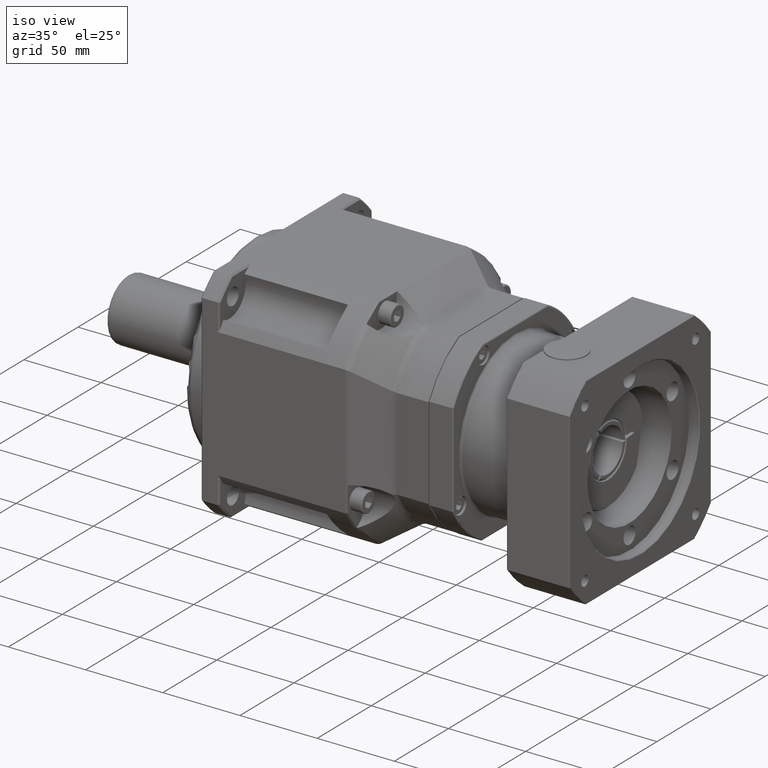
[diagram: clean part render]
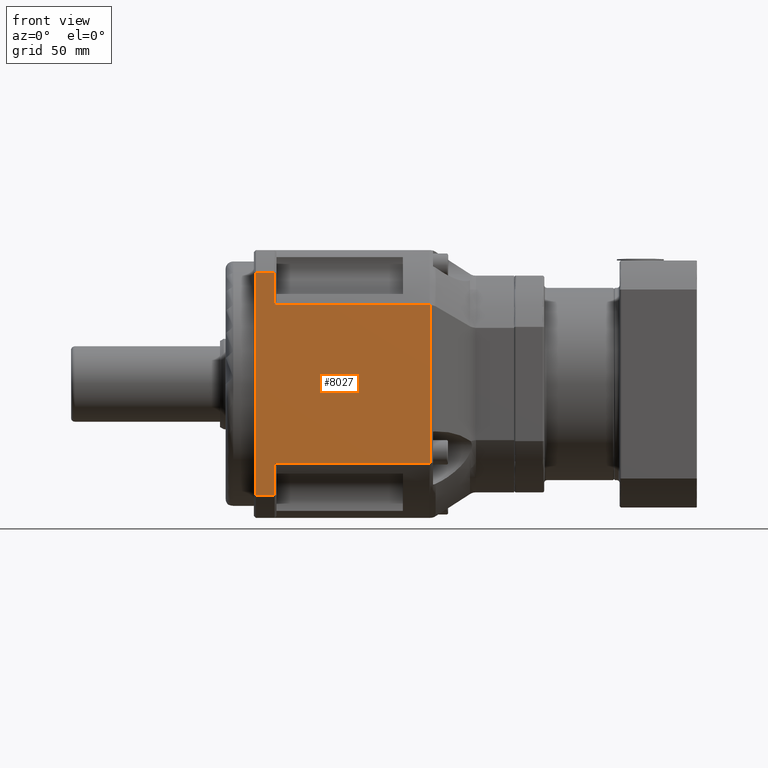
[diagram: tour spotlight — one face highlighted and labeled with its STEP entity id]
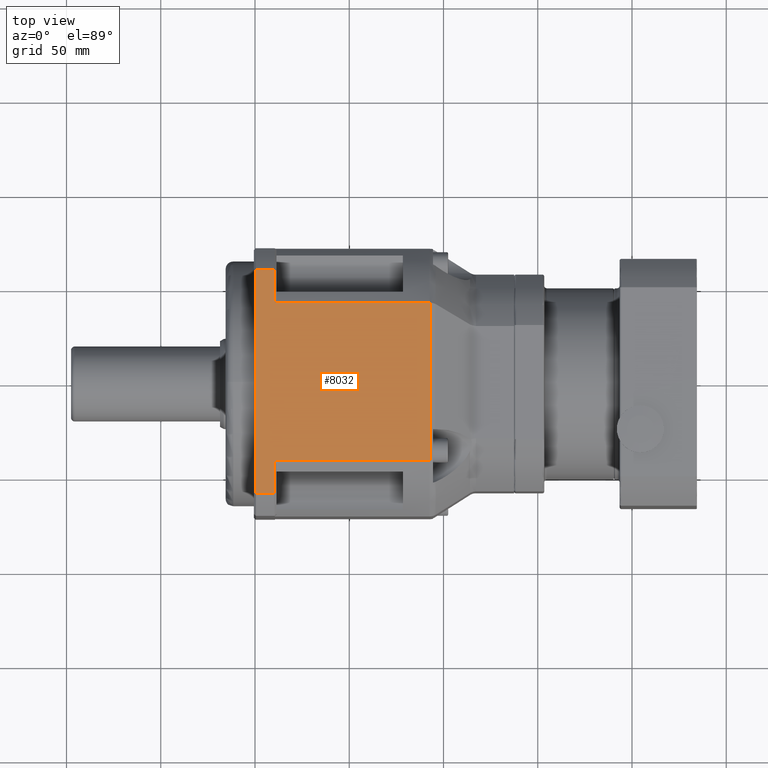
[diagram: tour spotlight — one face highlighted and labeled with its STEP entity id]
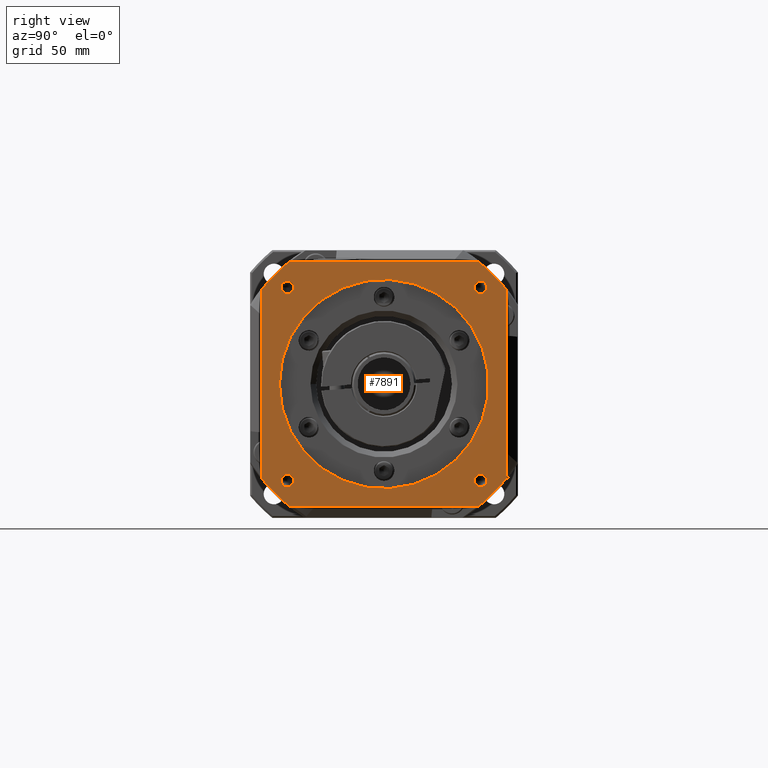
[diagram: tour spotlight — one face highlighted and labeled with its STEP entity id]
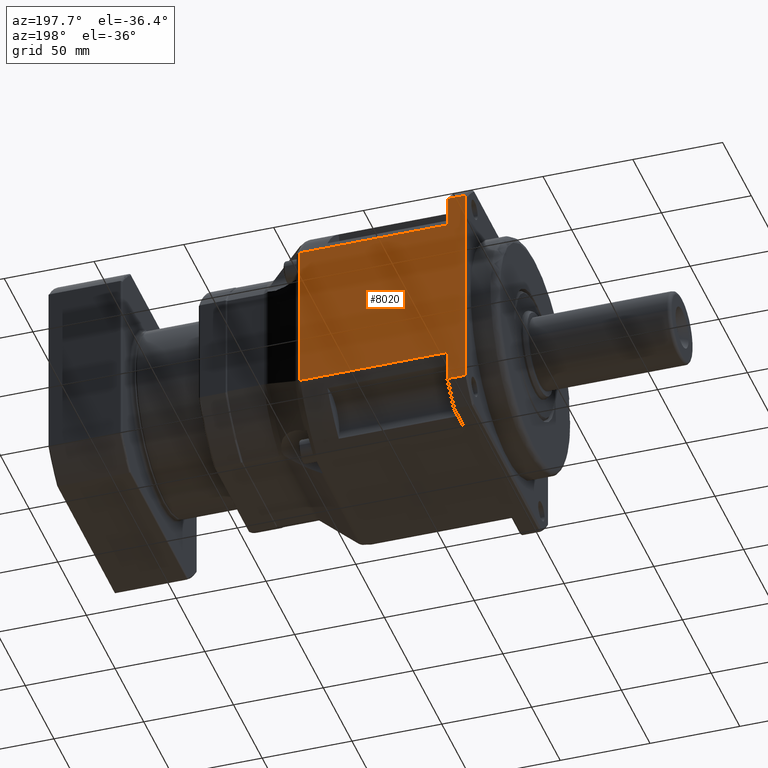
[diagram: tour spotlight — one face highlighted and labeled with its STEP entity id]
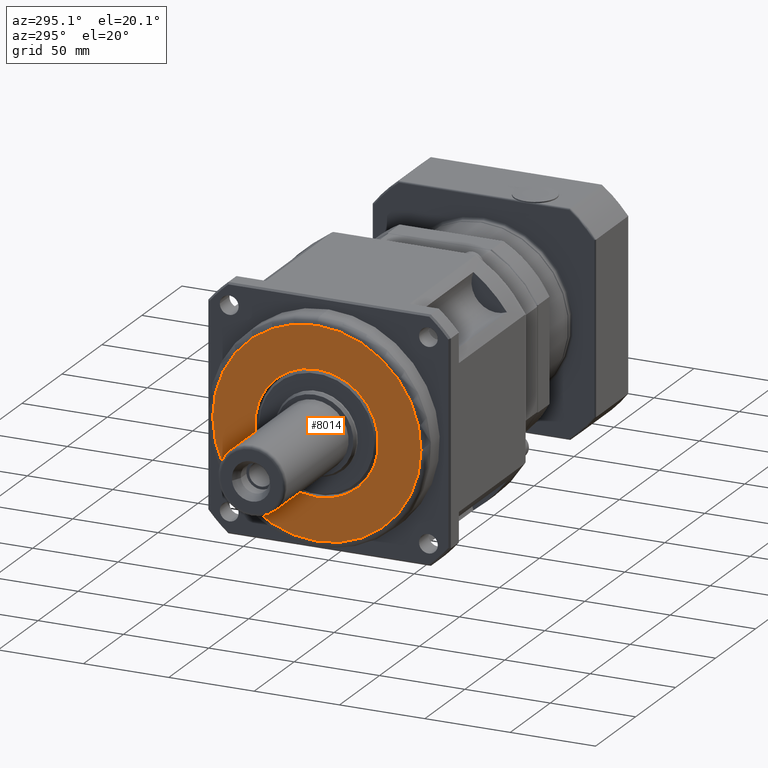
[diagram: tour spotlight — one face highlighted and labeled with its STEP entity id]
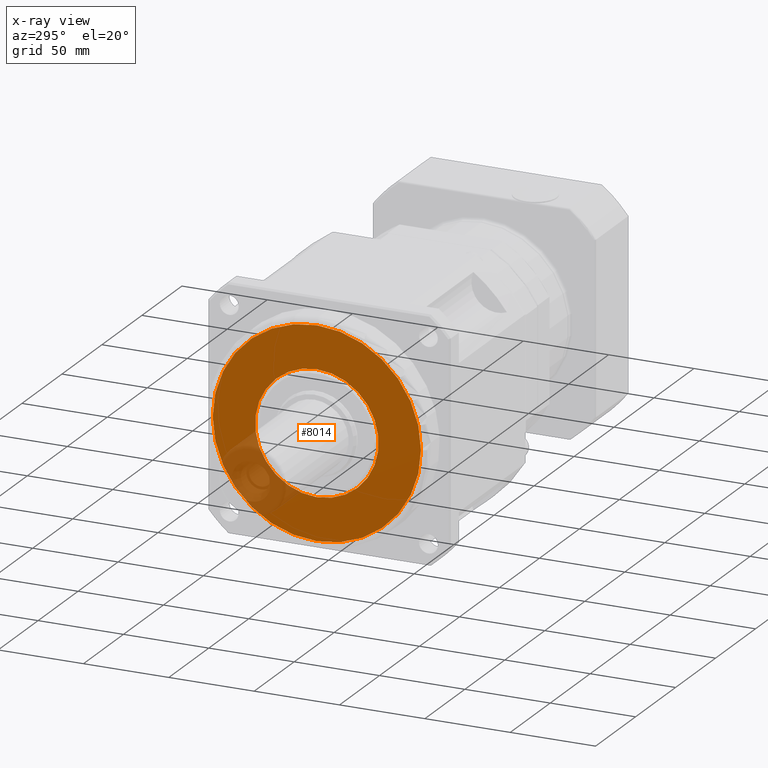
[diagram: x-ray of the same camera — body ghosted, this tour face saturated]
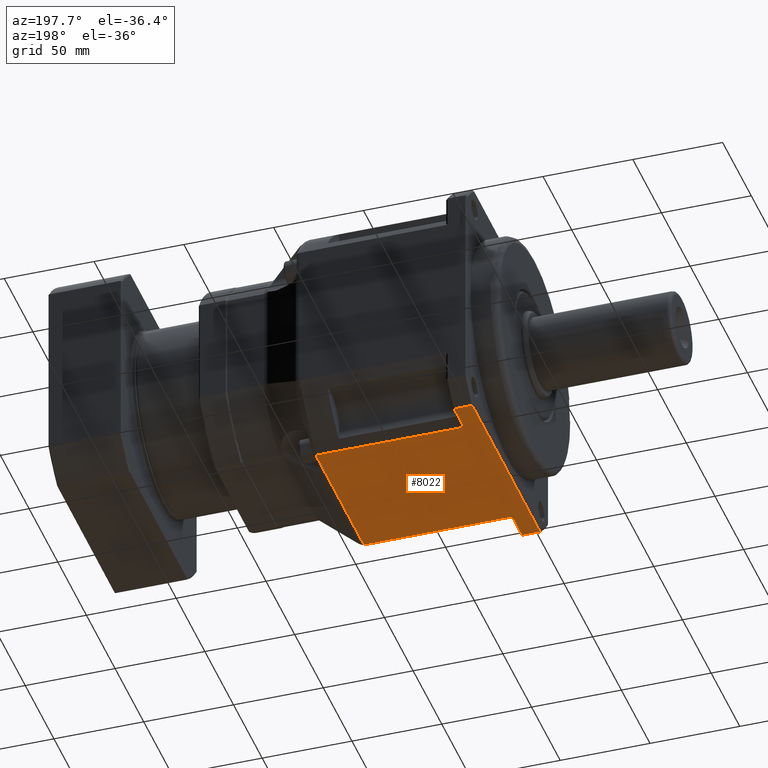
[diagram: tour spotlight — one face highlighted and labeled with its STEP entity id]
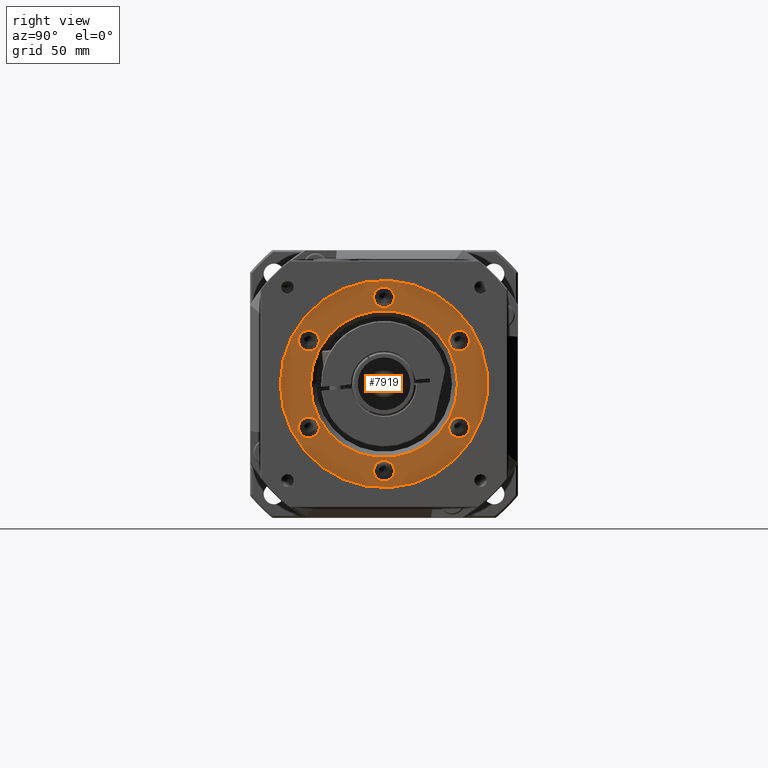
[diagram: tour spotlight — one face highlighted and labeled with its STEP entity id]
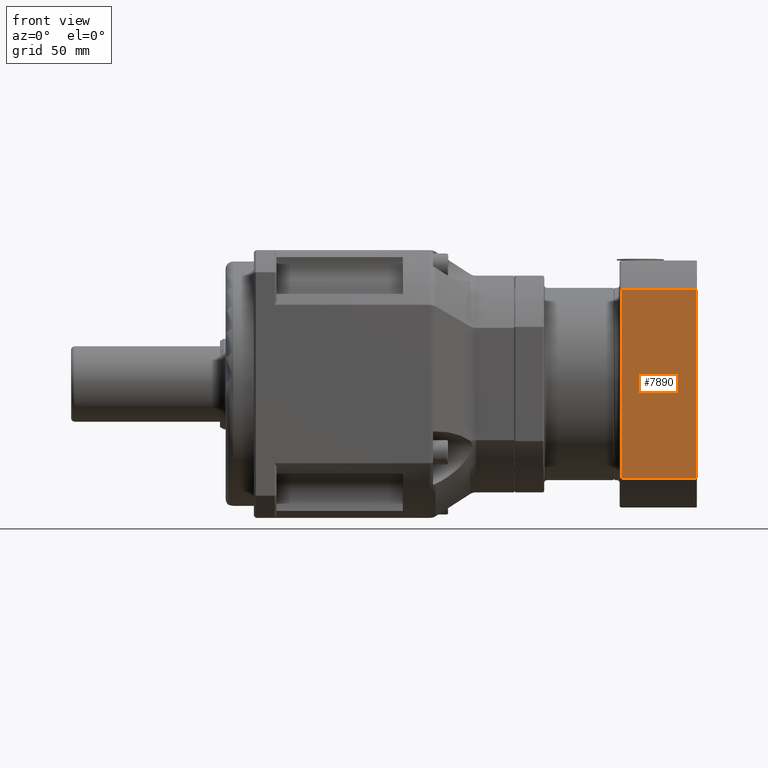
[diagram: tour spotlight — one face highlighted and labeled with its STEP entity id]
A machine part: a face-by-face anatomy tour. The part has 546 B-rep faces; the first image is the clean iso view, then the 8 largest visible faces are spotlighted one at a time (largest first), each with its STEP entity span.

Face 1 — front view, entity #8027. In plain terms, the highlighted planar face has unit normal (-0, -1, -0).
Definition (entity closure, byte-faithful):
#116=B_SPLINE_CURVE_WITH_KNOTS('',3,(#13410,#13411,#13412,#13413),
 .UNSPECIFIED.,.F.,.F.,(4,4),(0.,0.037302708061321),.UNSPECIFIED.);
#125=B_SPLINE_CURVE_WITH_KNOTS('',3,(#13486,#13487,#13488,#13489),
 .UNSPECIFIED.,.F.,.F.,(4,4),(0.231609461241632,0.268896153350201),
 .UNSPECIFIED.);
#428=LINE('',#13352,#815);
#462=LINE('',#13928,#849);
#463=LINE('',#13938,#850);
#464=LINE('',#13941,#851);
#465=LINE('',#13943,#852);
#466=LINE('',#13945,#853);
#467=LINE('',#13947,#854);
#468=LINE('',#13948,#855);
#815=VECTOR('',#10283,83.9761787812403);
#849=VECTOR('',#10435,17.2746654490736);
#850=VECTOR('',#10444,10.);
#851=VECTOR('',#10449,82.1624407477355);
#852=VECTOR('',#10450,82.1624407477355);
#853=VECTOR('',#10451,17.2746654490736);
#854=VECTOR('',#10452,10.);
#855=VECTOR('',#10453,118.57908753233);
#1334=PLANE('',#8815);
#2030=FACE_OUTER_BOUND('',#2735,.T.);
#2735=EDGE_LOOP('',(#6286,#6287,#6288,#6289,#6290,#6291,#6292,#6293,#6294,
#6295));
#3796=VERTEX_POINT('',#13350);
#3797=VERTEX_POINT('',#13351);
#3804=VERTEX_POINT('',#13404);
#3811=VERTEX_POINT('',#13485);
#3871=VERTEX_POINT('',#13925);
#3872=VERTEX_POINT('',#13927);
#3873=VERTEX_POINT('',#13937);
#3874=VERTEX_POINT('',#13942);
#3875=VERTEX_POINT('',#13944);
#3876=VERTEX_POINT('',#13946);
#4641=EDGE_CURVE('',#3796,#3797,#428,.T.);
#4649=EDGE_CURVE('',#3804,#3796,#116,.T.);
#4660=EDGE_CURVE('',#3797,#3811,#125,.T.);
#4748=EDGE_CURVE('',#3871,#3872,#462,.T.);
#4752=EDGE_CURVE('',#3873,#3872,#463,.T.);
#4754=EDGE_CURVE('',#3871,#3811,#464,.T.);
#4755=EDGE_CURVE('',#3804,#3874,#465,.T.);
#4756=EDGE_CURVE('',#3875,#3874,#466,.T.);
#4757=EDGE_CURVE('',#3875,#3876,#467,.T.);
#4758=EDGE_CURVE('',#3873,#3876,#468,.T.);
#6286=ORIENTED_EDGE('',*,*,#4748,.F.);
#6287=ORIENTED_EDGE('',*,*,#4754,.T.);
#6288=ORIENTED_EDGE('',*,*,#4660,.F.);
#6289=ORIENTED_EDGE('',*,*,#4641,.F.);
#6290=ORIENTED_EDGE('',*,*,#4649,.F.);
#6291=ORIENTED_EDGE('',*,*,#4755,.T.);
#6292=ORIENTED_EDGE('',*,*,#4756,.F.);
#6293=ORIENTED_EDGE('',*,*,#4757,.T.);
#6294=ORIENTED_EDGE('',*,*,#4758,.F.);
#6295=ORIENTED_EDGE('',*,*,#4752,.T.);
#8027=ADVANCED_FACE('',(#2030),#1334,.T.);
#8815=AXIS2_PLACEMENT_3D('',#13940,#10447,#10448);
#10283=DIRECTION('',(-1.0249428095239E-15,7.24918951158203E-16,-1.));
#10435=DIRECTION('',(-9.84803175675621E-16,1.5681900222825E-15,-1.));
#10444=DIRECTION('',(1.,-9.99200722162628E-16,-9.84803175675623E-16));
#10447=DIRECTION('center_axis',(-9.99200722162629E-16,-1.,-1.5681900222825E-15));
#10448=DIRECTION('ref_axis',(0.,-2.8421709430404E-15,1.));
#10449=DIRECTION('',(1.,-9.99200722162628E-16,-9.84803175675623E-16));
#10450=DIRECTION('',(-1.,9.99200722162628E-16,9.84803175675623E-16));
#10451=DIRECTION('',(-9.84803175675621E-16,1.5681900222825E-15,-1.));
#10452=DIRECTION('',(-1.,9.99200722162628E-16,9.84803175675623E-16));
#10453=DIRECTION('',(9.84803175675621E-16,-1.5681900222825E-15,1.));
#13350=CARTESIAN_POINT('',(-157.027894704555,-221.310004596179,-35.0144366046211));
#13351=CARTESIAN_POINT('',(-157.027894720433,-221.310004596179,-118.990615385861));
#13352=CARTESIAN_POINT('',(-157.027894704555,-221.310004596179,-133.509965151478));
#13404=CARTESIAN_POINT('',(-157.396944525101,-221.310004596179,-34.987647675841));
#13410=CARTESIAN_POINT('Ctrl Pts',(-157.396944526206,-221.310003650993,
-34.9876480840814));
#13411=CARTESIAN_POINT('Ctrl Pts',(-157.272611744944,-221.310002974246,
-34.9876471746842));
#13412=CARTESIAN_POINT('Ctrl Pts',(-157.149552368786,-221.30984720973,-34.9968411598229));
#13413=CARTESIAN_POINT('Ctrl Pts',(-157.028025518662,-221.309633687754,
-35.0146525630043));
#13485=CARTESIAN_POINT('',(-157.396944525101,-221.31000459618,-119.017404310023));
#13486=CARTESIAN_POINT('Ctrl Pts',(-157.028025487734,-221.309634797763,
-118.990398787272));
#13487=CARTESIAN_POINT('Ctrl Pts',(-157.149972069539,-221.309849233291,
-119.008271425681));
#13488=CARTESIAN_POINT('Ctrl Pts',(-157.273032847507,-221.310003750162,
-119.017404726513));
#13489=CARTESIAN_POINT('Ctrl Pts',(-157.396944525575,-221.310004187576,
-119.017404139504));
#13925=CARTESIAN_POINT('',(-239.559385272837,-221.310004596179,-119.017404310024));
#13927=CARTESIAN_POINT('',(-239.559385272837,-221.310004596179,-136.292069759097));
#13928=CARTESIAN_POINT('',(-239.559385272837,-221.310004596179,-112.502525992932));
#13937=CARTESIAN_POINT('',(-249.559385272837,-221.310004596179,-136.292069759097));
#13938=CARTESIAN_POINT('',(-171.559385272837,-221.310004596179,-136.292069759097));
#13940=CARTESIAN_POINT('Origin',(-171.559385272837,-221.310004596179,-148.002525992932));
#13941=CARTESIAN_POINT('',(-171.559385272837,-221.310004596179,-119.017404310024));
#13942=CARTESIAN_POINT('',(-239.559385272836,-221.310004596179,-34.9876476758409));
#13943=CARTESIAN_POINT('',(-171.559385272837,-221.310004596179,-34.987647675841));
#13944=CARTESIAN_POINT('',(-239.559385272836,-221.310004596179,-17.7129822267673));
#13945=CARTESIAN_POINT('',(-239.559385272837,-221.310004596179,-112.502525992932));
#13946=CARTESIAN_POINT('',(-249.559385272836,-221.310004596179,-17.7129822267673));
#13947=CARTESIAN_POINT('',(-171.559385272836,-221.310004596179,-17.7129822267674));
#13948=CARTESIAN_POINT('',(-249.559385272837,-221.310004596179,-112.502525992932));

Face 2 — top view, entity #8032. In plain terms, the highlighted planar face has unit normal (0, -0, 1).
Definition (entity closure, byte-faithful):
#114=B_SPLINE_CURVE_WITH_KNOTS('',3,(#13400,#13401,#13402,#13403),
 .UNSPECIFIED.,.F.,.F.,(4,4),(0.0519435295556564,0.0892245289449538),
 .UNSPECIFIED.);
#149=B_SPLINE_CURVE_WITH_KNOTS('',3,(#13695,#13696,#13697,#13698),
 .UNSPECIFIED.,.F.,.F.,(4,4),(0.,0.0373027080613202),.UNSPECIFIED.);
#439=LINE('',#13728,#826);
#471=LINE('',#13965,#858);
#472=LINE('',#13975,#859);
#473=LINE('',#13978,#860);
#474=LINE('',#13980,#861);
#475=LINE('',#13982,#862);
#476=LINE('',#13984,#863);
#477=LINE('',#13985,#864);
#826=VECTOR('',#10326,83.9761787766225);
#858=VECTOR('',#10464,17.2746654490736);
#859=VECTOR('',#10473,10.);
#860=VECTOR('',#10478,82.1624407477355);
#861=VECTOR('',#10479,82.1624407477355);
#862=VECTOR('',#10480,17.2746654490736);
#863=VECTOR('',#10481,10.);
#864=VECTOR('',#10482,118.57908753233);
#1337=PLANE('',#8825);
#2035=FACE_OUTER_BOUND('',#2740,.T.);
#2740=EDGE_LOOP('',(#6312,#6313,#6314,#6315,#6316,#6317,#6318,#6319,#6320,
#6321));
#3802=VERTEX_POINT('',#13398);
#3803=VERTEX_POINT('',#13399);
#3835=VERTEX_POINT('',#13688);
#3836=VERTEX_POINT('',#13694);
#3881=VERTEX_POINT('',#13962);
#3882=VERTEX_POINT('',#13964);
#3883=VERTEX_POINT('',#13974);
#3884=VERTEX_POINT('',#13979);
#3885=VERTEX_POINT('',#13981);
#3886=VERTEX_POINT('',#13983);
#4647=EDGE_CURVE('',#3802,#3803,#114,.T.);
#4695=EDGE_CURVE('',#3835,#3836,#149,.T.);
#4702=EDGE_CURVE('',#3836,#3802,#439,.T.);
#4764=EDGE_CURVE('',#3881,#3882,#471,.T.);
#4768=EDGE_CURVE('',#3883,#3882,#472,.T.);
#4770=EDGE_CURVE('',#3881,#3803,#473,.T.);
#4771=EDGE_CURVE('',#3835,#3884,#474,.T.);
#4772=EDGE_CURVE('',#3885,#3884,#475,.T.);
#4773=EDGE_CURVE('',#3885,#3886,#476,.T.);
#4774=EDGE_CURVE('',#3883,#3886,#477,.T.);
#6312=ORIENTED_EDGE('',*,*,#4764,.F.);
#6313=ORIENTED_EDGE('',*,*,#4770,.T.);
#6314=ORIENTED_EDGE('',*,*,#4647,.F.);
#6315=ORIENTED_EDGE('',*,*,#4702,.F.);
#6316=ORIENTED_EDGE('',*,*,#4695,.F.);
#6317=ORIENTED_EDGE('',*,*,#4771,.T.);
#6318=ORIENTED_EDGE('',*,*,#4772,.F.);
#6319=ORIENTED_EDGE('',*,*,#4773,.T.);
#6320=ORIENTED_EDGE('',*,*,#4774,.F.);
#6321=ORIENTED_EDGE('',*,*,#4768,.T.);
#8032=ADVANCED_FACE('',(#2035),#1337,.T.);
#8825=AXIS2_PLACEMENT_3D('',#13977,#10476,#10477);
#10326=DIRECTION('',(-1.36175586748856E-16,-1.,-9.75110055299083E-16));
#10464=DIRECTION('',(-9.99200722162629E-16,-1.,-1.63073779831772E-15));
#10473=DIRECTION('',(1.,-9.99200722162628E-16,-9.84803175675623E-16));
#10476=DIRECTION('center_axis',(9.84803175675621E-16,-1.63073779831772E-15,
1.));
#10477=DIRECTION('ref_axis',(0.,1.,1.59872115546023E-15));
#10478=DIRECTION('',(1.,-9.99200722162628E-16,-9.84803175675623E-16));
#10479=DIRECTION('',(-1.,9.99200722162628E-16,9.84803175675623E-16));
#10480=DIRECTION('',(-9.99200722162629E-16,-1.,-1.63073779831772E-15));
#10481=DIRECTION('',(-1.,9.99200722162628E-16,9.84803175675623E-16));
#10482=DIRECTION('',(9.99200722162629E-16,1.,1.63073779831772E-15));
#13398=CARTESIAN_POINT('',(-157.027894704555,-192.298093984491,-6.00252599293231));
#13399=CARTESIAN_POINT('',(-157.396944525101,-192.32488291327,-6.00252599293205));
#13400=CARTESIAN_POINT('Ctrl Pts',(-157.0280254723,-192.297877032902,-6.00289615163605));
#13401=CARTESIAN_POINT('Ctrl Pts',(-157.149671931424,-192.315706269585,
-6.0026827167864));
#13402=CARTESIAN_POINT('Ctrl Pts',(-157.272731734446,-192.324882849755,
-6.00252733492318));
#13403=CARTESIAN_POINT('Ctrl Pts',(-157.396944526379,-192.324882262751,
-6.00252689679728));
#13688=CARTESIAN_POINT('',(-157.396944525101,-108.295126279088,-6.00252599293219));
#13694=CARTESIAN_POINT('',(-157.027894704555,-108.321915207868,-6.00252599293223));
#13695=CARTESIAN_POINT('Ctrl Pts',(-157.396944526164,-108.295126662152,
-6.00252691304323));
#13696=CARTESIAN_POINT('Ctrl Pts',(-157.272611744794,-108.295125753389,
-6.0025275896627));
#13697=CARTESIAN_POINT('Ctrl Pts',(-157.149552368542,-108.304319740733,
-6.00268335573477));
#13698=CARTESIAN_POINT('Ctrl Pts',(-157.028025518381,-108.322131146946,
-6.00289688047491));
#13728=CARTESIAN_POINT('',(-157.027894704555,-206.817443754725,-6.00252599293233));
#13962=CARTESIAN_POINT('',(-239.559385272836,-192.324882913271,-6.00252599293227));
#13964=CARTESIAN_POINT('',(-239.559385272836,-209.599548362344,-6.00252599293229));
#13965=CARTESIAN_POINT('',(-239.559385272836,-185.810004596179,-6.00252599293226));
#13974=CARTESIAN_POINT('',(-249.559385272836,-209.599548362344,-6.00252599293229));
#13975=CARTESIAN_POINT('',(-171.559385272836,-209.599548362344,-6.00252599293236));
#13977=CARTESIAN_POINT('Origin',(-171.559385272836,-221.310004596179,-6.00252599293238));
#13978=CARTESIAN_POINT('',(-171.559385272836,-192.324882913271,-6.00252599293233));
#13979=CARTESIAN_POINT('',(-239.559385272836,-108.295126279088,-6.00252599293213));
#13980=CARTESIAN_POINT('',(-171.559385272836,-108.295126279088,-6.00252599293221));
#13981=CARTESIAN_POINT('',(-239.559385272836,-91.0204608300142,-6.00252599293211));
#13982=CARTESIAN_POINT('',(-239.559385272836,-185.810004596179,-6.00252599293226));
#13983=CARTESIAN_POINT('',(-249.559385272836,-91.0204608300142,-6.0025259929321));
#13984=CARTESIAN_POINT('',(-171.559385272836,-91.0204608300143,-6.00252599293218));
#13985=CARTESIAN_POINT('',(-249.559385272836,-185.810004596179,-6.00252599293225));

Face 3 — right view, entity #7891. In plain terms, the highlighted planar face has unit normal (1, -0, -0).
Definition (entity closure, byte-faithful):
#375=LINE('',#12293,#762);
#376=LINE('',#12329,#763);
#379=LINE('',#12368,#766);
#380=LINE('',#12401,#767);
#762=VECTOR('',#9876,99.9799979995997);
#763=VECTOR('',#9885,99.9799979995998);
#766=VECTOR('',#9896,99.9799979995998);
#767=VECTOR('',#9903,99.9799979995998);
#1288=PLANE('',#8586);
#1544=FACE_BOUND('',#2530,.T.);
#1545=FACE_BOUND('',#2531,.T.);
#1546=FACE_BOUND('',#2532,.T.);
#1547=FACE_BOUND('',#2533,.T.);
#1548=FACE_BOUND('',#2534,.T.);
#1894=FACE_OUTER_BOUND('',#2529,.T.);
#2529=EDGE_LOOP('',(#5725,#5726,#5727,#5728,#5729,#5730,#5731,#5732));
#2530=EDGE_LOOP('',(#5733));
#2531=EDGE_LOOP('',(#5734));
#2532=EDGE_LOOP('',(#5735));
#2533=EDGE_LOOP('',(#5736));
#2534=EDGE_LOOP('',(#5737));
#3181=CIRCLE('',#8572,82.);
#3182=CIRCLE('',#8575,82.);
#3184=CIRCLE('',#8579,82.);
#3186=CIRCLE('',#8583,82.);
#3187=CIRCLE('',#8587,55.5);
#3188=CIRCLE('',#8588,3.3235);
#3189=CIRCLE('',#8589,3.3235);
#3190=CIRCLE('',#8590,3.3235);
#3191=CIRCLE('',#8591,3.3235);
#3648=VERTEX_POINT('',#12260);
#3649=VERTEX_POINT('',#12261);
#3650=VERTEX_POINT('',#12292);
#3651=VERTEX_POINT('',#12309);
#3653=VERTEX_POINT('',#12328);
#3655=VERTEX_POINT('',#12347);
#3657=VERTEX_POINT('',#12367);
#3658=VERTEX_POINT('',#12384);
#3659=VERTEX_POINT('',#12405);
#3660=VERTEX_POINT('',#12407);
#3661=VERTEX_POINT('',#12409);
#3662=VERTEX_POINT('',#12411);
#3663=VERTEX_POINT('',#12413);
#4441=EDGE_CURVE('',#3648,#3649,#3181,.T.);
#4444=EDGE_CURVE('',#3649,#3650,#375,.T.);
#4446=EDGE_CURVE('',#3650,#3651,#3182,.T.);
#4449=EDGE_CURVE('',#3651,#3653,#376,.T.);
#4452=EDGE_CURVE('',#3653,#3655,#3184,.T.);
#4456=EDGE_CURVE('',#3655,#3657,#379,.T.);
#4458=EDGE_CURVE('',#3657,#3658,#3186,.T.);
#4460=EDGE_CURVE('',#3658,#3648,#380,.T.);
#4462=EDGE_CURVE('',#3659,#3659,#3187,.T.);
#4463=EDGE_CURVE('',#3660,#3660,#3188,.T.);
#4464=EDGE_CURVE('',#3661,#3661,#3189,.T.);
#4465=EDGE_CURVE('',#3662,#3662,#3190,.T.);
#4466=EDGE_CURVE('',#3663,#3663,#3191,.T.);
#5725=ORIENTED_EDGE('',*,*,#4441,.F.);
#5726=ORIENTED_EDGE('',*,*,#4460,.F.);
#5727=ORIENTED_EDGE('',*,*,#4458,.F.);
#5728=ORIENTED_EDGE('',*,*,#4456,.F.);
#5729=ORIENTED_EDGE('',*,*,#4452,.F.);
#5730=ORIENTED_EDGE('',*,*,#4449,.F.);
#5731=ORIENTED_EDGE('',*,*,#4446,.F.);
#5732=ORIENTED_EDGE('',*,*,#4444,.F.);
#5733=ORIENTED_EDGE('',*,*,#4462,.F.);
#5734=ORIENTED_EDGE('',*,*,#4463,.T.);
#5735=ORIENTED_EDGE('',*,*,#4464,.T.);
#5736=ORIENTED_EDGE('',*,*,#4465,.T.);
#5737=ORIENTED_EDGE('',*,*,#4466,.T.);
#7891=ADVANCED_FACE('',(#1894,#1544,#1545,#1546,#1547,#1548),#1288,.T.);
#8572=AXIS2_PLACEMENT_3D('',#12262,#9872,#9873);
#8575=AXIS2_PLACEMENT_3D('',#12310,#9879,#9880);
#8579=AXIS2_PLACEMENT_3D('',#12348,#9889,#9890);
#8583=AXIS2_PLACEMENT_3D('',#12385,#9899,#9900);
#8586=AXIS2_PLACEMENT_3D('',#12404,#9907,#9908);
#8587=AXIS2_PLACEMENT_3D('',#12406,#9909,#9910);
#8588=AXIS2_PLACEMENT_3D('',#12408,#9911,#9912);
#8589=AXIS2_PLACEMENT_3D('',#12410,#9913,#9914);
#8590=AXIS2_PLACEMENT_3D('',#12412,#9915,#9916);
#8591=AXIS2_PLACEMENT_3D('',#12414,#9917,#9918);
#9872=DIRECTION('center_axis',(-1.,1.30595604156569E-21,1.15918820918505E-15));
#9873=DIRECTION('ref_axis',(8.19670766836617E-16,0.707106781186546,0.707106781186549));
#9876=DIRECTION('',(-1.15918820918506E-15,1.88737914186277E-15,-1.));
#9879=DIRECTION('center_axis',(-1.,1.30595604156569E-21,1.15918820918505E-15));
#9880=DIRECTION('ref_axis',(-8.19668919935868E-16,0.707106781186549,-0.707106781186546));
#9885=DIRECTION('',(-1.30595604383211E-21,-1.,-1.95517902122919E-15));
#9889=DIRECTION('center_axis',(-1.,1.30595604156569E-21,1.15918820918505E-15));
#9890=DIRECTION('ref_axis',(-8.19670766836617E-16,-0.707106781186546,-0.707106781186549));
#9896=DIRECTION('',(1.15918820918505E-15,-2.02297890059561E-15,1.));
#9899=DIRECTION('center_axis',(-1.,1.30595604156569E-21,1.15918820918505E-15));
#9900=DIRECTION('ref_axis',(8.19668919935868E-16,-0.707106781186549,0.707106781186546));
#9903=DIRECTION('',(1.3059560439893E-21,1.,2.09077877996203E-15));
#9907=DIRECTION('center_axis',(1.,-1.30595604156569E-21,-1.15918820918505E-15));
#9908=DIRECTION('ref_axis',(1.24344978758018E-15,-2.8421709430404E-15,1.));
#9909=DIRECTION('center_axis',(1.,-1.30595604156569E-21,-1.15918820918505E-15));
#9910=DIRECTION('ref_axis',(1.30595604383211E-21,1.,1.95517902122919E-15));
#9911=DIRECTION('center_axis',(-1.,1.30595604156569E-21,1.15918820918505E-15));
#9912=DIRECTION('ref_axis',(1.30595604354058E-21,1.,1.70368212199067E-15));
#9913=DIRECTION('center_axis',(-1.,1.30595604156569E-21,1.15918820918505E-15));
#9914=DIRECTION('ref_axis',(-1.15918820918505E-15,1.76491446194803E-15,
-1.));
#9915=DIRECTION('center_axis',(-1.,1.30595604156569E-21,1.15918820918505E-15));
#9916=DIRECTION('ref_axis',(-1.30595604368254E-21,-1.,-1.8261468019054E-15));
#9917=DIRECTION('center_axis',(-1.,1.30595604156569E-21,1.15918820918505E-15));
#9918=DIRECTION('ref_axis',(1.15918820918505E-15,-1.88737914186277E-15,
1.));
#12260=CARTESIAN_POINT('',(-15.5593852728364,-100.32000559638,-12.0025259929323));
#12261=CARTESIAN_POINT('',(-15.5593852728364,-85.3100045961794,-27.0125269931324));
#12262=CARTESIAN_POINT('Origin',(-15.5593852728365,-150.310004596179,-77.0025259929324));
#12292=CARTESIAN_POINT('',(-15.5593852728365,-85.3100045961792,-126.992524992732));
#12293=CARTESIAN_POINT('',(-15.5593852728364,-85.3100045961793,-44.2525259929323));
#12309=CARTESIAN_POINT('',(-15.5593852728365,-100.320005596379,-142.002525992932));
#12310=CARTESIAN_POINT('Origin',(-15.5593852728365,-150.310004596179,-77.0025259929324));
#12328=CARTESIAN_POINT('',(-15.5593852728365,-200.300003595979,-142.002525992933));
#12329=CARTESIAN_POINT('',(-15.5593852728365,-117.560004596179,-142.002525992932));
#12347=CARTESIAN_POINT('',(-15.5593852728365,-215.310004596179,-126.992524992732));
#12348=CARTESIAN_POINT('Origin',(-15.5593852728365,-150.310004596179,-77.0025259929324));
#12367=CARTESIAN_POINT('',(-15.5593852728364,-215.310004596179,-27.0125269931327));
#12368=CARTESIAN_POINT('',(-15.5593852728365,-215.310004596179,-109.752525992933));
#12384=CARTESIAN_POINT('',(-15.5593852728364,-200.300003595979,-12.0025259929325));
#12385=CARTESIAN_POINT('Origin',(-15.5593852728365,-150.310004596179,-77.0025259929324));
#12401=CARTESIAN_POINT('',(-15.5593852728364,-183.060004596179,-12.0025259929325));
#12404=CARTESIAN_POINT('Origin',(-15.5593852728365,-150.310004596179,-77.0025259929324));
#12405=CARTESIAN_POINT('',(-15.5593852728365,-205.810004596179,-77.0025259929325));
#12406=CARTESIAN_POINT('Origin',(-15.5593852728365,-150.310004596179,-77.0025259929324));
#12407=CARTESIAN_POINT('',(-15.5593852728365,-95.7212629601545,-128.267767628957));
#12408=CARTESIAN_POINT('Origin',(-15.5593852728365,-99.0447629601545,-128.267767628957));
#12409=CARTESIAN_POINT('',(-15.5593852728365,-201.575246232204,-131.591267628957));
#12410=CARTESIAN_POINT('Origin',(-15.5593852728365,-201.575246232204,-128.267767628957));
#12411=CARTESIAN_POINT('',(-15.5593852728364,-204.898746232204,-25.7372843569078));
#12412=CARTESIAN_POINT('Origin',(-15.5593852728364,-201.575246232204,-25.7372843569078));
#12413=CARTESIAN_POINT('',(-15.5593852728364,-99.0447629601547,-22.4137843569076));
#12414=CARTESIAN_POINT('Origin',(-15.5593852728364,-99.0447629601547,-25.7372843569076));

Face 4 — auxiliary view, entity #8020. In plain terms, the highlighted planar face has unit normal (0, 1, 0).
Definition (entity closure, byte-faithful):
#138=B_SPLINE_CURVE_WITH_KNOTS('',3,(#13597,#13598,#13599,#13600),
 .UNSPECIFIED.,.F.,.F.,(4,4),(0.,0.0373027080613228),.UNSPECIFIED.);
#147=B_SPLINE_CURVE_WITH_KNOTS('',3,(#13684,#13685,#13686,#13687),
 .UNSPECIFIED.,.F.,.F.,(4,4),(0.231609461241533,0.26889615335008),
 .UNSPECIFIED.);
#434=LINE('',#13621,#821);
#444=LINE('',#13864,#831);
#448=LINE('',#13889,#835);
#449=LINE('',#13891,#836);
#450=LINE('',#13893,#837);
#451=LINE('',#13895,#838);
#452=LINE('',#13897,#839);
#453=LINE('',#13898,#840);
#821=VECTOR('',#10311,83.9761787812403);
#831=VECTOR('',#10389,17.2746654490736);
#835=VECTOR('',#10407,82.1624407477355);
#836=VECTOR('',#10408,10.);
#837=VECTOR('',#10409,118.57908753233);
#838=VECTOR('',#10410,10.);
#839=VECTOR('',#10411,17.2746654490736);
#840=VECTOR('',#10412,82.1624407477355);
#1330=PLANE('',#8802);
#2023=FACE_OUTER_BOUND('',#2728,.T.);
#2728=EDGE_LOOP('',(#6246,#6247,#6248,#6249,#6250,#6251,#6252,#6253,#6254,
#6255));
#3824=VERTEX_POINT('',#13590);
#3825=VERTEX_POINT('',#13596);
#3828=VERTEX_POINT('',#13620);
#3834=VERTEX_POINT('',#13683);
#3851=VERTEX_POINT('',#13862);
#3852=VERTEX_POINT('',#13863);
#3859=VERTEX_POINT('',#13890);
#3860=VERTEX_POINT('',#13892);
#3861=VERTEX_POINT('',#13894);
#3862=VERTEX_POINT('',#13896);
#4679=EDGE_CURVE('',#3824,#3825,#138,.T.);
#4683=EDGE_CURVE('',#3825,#3828,#434,.T.);
#4693=EDGE_CURVE('',#3828,#3834,#147,.T.);
#4720=EDGE_CURVE('',#3851,#3852,#444,.T.);
#4730=EDGE_CURVE('',#3824,#3852,#448,.T.);
#4731=EDGE_CURVE('',#3851,#3859,#449,.T.);
#4732=EDGE_CURVE('',#3860,#3859,#450,.T.);
#4733=EDGE_CURVE('',#3860,#3861,#451,.T.);
#4734=EDGE_CURVE('',#3862,#3861,#452,.T.);
#4735=EDGE_CURVE('',#3862,#3834,#453,.T.);
#6246=ORIENTED_EDGE('',*,*,#4730,.T.);
#6247=ORIENTED_EDGE('',*,*,#4720,.F.);
#6248=ORIENTED_EDGE('',*,*,#4731,.T.);
#6249=ORIENTED_EDGE('',*,*,#4732,.F.);
#6250=ORIENTED_EDGE('',*,*,#4733,.T.);
#6251=ORIENTED_EDGE('',*,*,#4734,.F.);
#6252=ORIENTED_EDGE('',*,*,#4735,.T.);
#6253=ORIENTED_EDGE('',*,*,#4693,.F.);
#6254=ORIENTED_EDGE('',*,*,#4683,.F.);
#6255=ORIENTED_EDGE('',*,*,#4679,.F.);
#8020=ADVANCED_FACE('',(#2023),#1330,.T.);
#8802=AXIS2_PLACEMENT_3D('',#13888,#10405,#10406);
#10311=DIRECTION('',(1.15918820918505E-15,-8.50014503228643E-16,1.));
#10389=DIRECTION('',(9.84803175675621E-16,-1.69328557435294E-15,1.));
#10405=DIRECTION('center_axis',(9.9920072216263E-16,1.,1.69328557435294E-15));
#10406=DIRECTION('ref_axis',(0.,1.4210854715202E-15,-1.));
#10407=DIRECTION('',(-1.,9.99200722162628E-16,9.84803175675623E-16));
#10408=DIRECTION('',(-1.,9.99200722162628E-16,9.84803175675623E-16));
#10409=DIRECTION('',(-9.84803175675621E-16,1.69328557435294E-15,-1.));
#10410=DIRECTION('',(1.,-9.99200722162628E-16,-9.84803175675623E-16));
#10411=DIRECTION('',(9.84803175675621E-16,-1.69328557435294E-15,1.));
#10412=DIRECTION('',(1.,-9.99200722162628E-16,-9.84803175675623E-16));
#13590=CARTESIAN_POINT('',(-157.396944525101,-79.3100045961792,-119.017404310024));
#13596=CARTESIAN_POINT('',(-157.027894704555,-79.3100045961792,-118.990615381243));
#13597=CARTESIAN_POINT('Ctrl Pts',(-157.396944526206,-79.3100055413491,
-119.0174039018));
#13598=CARTESIAN_POINT('Ctrl Pts',(-157.272611744944,-79.3100062180958,
-119.017404811197));
#13599=CARTESIAN_POINT('Ctrl Pts',(-157.149552368786,-79.310161982613,-119.008210826056));
#13600=CARTESIAN_POINT('Ctrl Pts',(-157.028025518662,-79.3103755045912,
-118.990399422873));
#13620=CARTESIAN_POINT('',(-157.027894720433,-79.3100045961793,-35.0144366000032));
#13621=CARTESIAN_POINT('',(-157.027894704555,-79.3100045961793,-20.4950868343865));
#13683=CARTESIAN_POINT('',(-157.396944525101,-79.310004596179,-34.9876476758412));
#13684=CARTESIAN_POINT('Ctrl Pts',(-157.028025488176,-79.3103747504923,
-35.0146535463622));
#13685=CARTESIAN_POINT('Ctrl Pts',(-157.149972070126,-79.3101603950991,
-34.9967809853835));
#13686=CARTESIAN_POINT('Ctrl Pts',(-157.273032848235,-79.3100059294349,
-34.9876477329008));
#13687=CARTESIAN_POINT('Ctrl Pts',(-157.396944526366,-79.310005492177,-34.9876483185249));
#13862=CARTESIAN_POINT('',(-239.559385272836,-79.310004596179,-136.292069759097));
#13863=CARTESIAN_POINT('',(-239.559385272836,-79.310004596179,-119.017404310024));
#13864=CARTESIAN_POINT('',(-239.559385272836,-79.3100045961791,-41.5025259929321));
#13888=CARTESIAN_POINT('Origin',(-171.559385272836,-79.3100045961793,-6.00252599293215));
#13889=CARTESIAN_POINT('',(-171.559385272836,-79.3100045961791,-119.017404310024));
#13890=CARTESIAN_POINT('',(-249.559385272836,-79.310004596179,-136.292069759097));
#13891=CARTESIAN_POINT('',(-171.559385272836,-79.3100045961791,-136.292069759097));
#13892=CARTESIAN_POINT('',(-249.559385272836,-79.3100045961792,-17.7129822267671));
#13893=CARTESIAN_POINT('',(-249.559385272836,-79.3100045961791,-41.5025259929321));
#13894=CARTESIAN_POINT('',(-239.559385272836,-79.3100045961792,-17.7129822267671));
#13895=CARTESIAN_POINT('',(-171.559385272836,-79.3100045961793,-17.7129822267671));
#13896=CARTESIAN_POINT('',(-239.559385272836,-79.3100045961792,-34.9876476758407));
#13897=CARTESIAN_POINT('',(-239.559385272836,-79.3100045961791,-41.5025259929321));
#13898=CARTESIAN_POINT('',(-171.559385272836,-79.3100045961792,-34.9876476758407));

Face 5 — auxiliary view, entity #8014. An x-ray twin of the same camera follows (body ghosted, this face saturated) — the face is partly hidden behind the body. In plain terms, the highlighted planar face has unit normal (1, -0, -0).
Definition (entity closure, byte-faithful):
#1327=PLANE('',#8789);
#1611=FACE_BOUND('',#2720,.T.);
#2017=FACE_OUTER_BOUND('',#2719,.T.);
#2719=EDGE_LOOP('',(#6228));
#2720=EDGE_LOOP('',(#6229));
#3274=CIRCLE('',#8788,36.1547005383792);
#3275=CIRCLE('',#8790,61.);
#3847=VERTEX_POINT('',#13850);
#3848=VERTEX_POINT('',#13853);
#4716=EDGE_CURVE('',#3847,#3847,#3274,.T.);
#4717=EDGE_CURVE('',#3848,#3848,#3275,.T.);
#6228=ORIENTED_EDGE('',*,*,#4717,.F.);
#6229=ORIENTED_EDGE('',*,*,#4716,.F.);
#8014=ADVANCED_FACE('',(#2017,#1611),#1327,.F.);
#8788=AXIS2_PLACEMENT_3D('',#13851,#10373,#10374);
#8789=AXIS2_PLACEMENT_3D('',#13852,#10375,#10376);
#8790=AXIS2_PLACEMENT_3D('',#13854,#10377,#10378);
#10373=DIRECTION('center_axis',(-1.,9.99200722162628E-16,9.84803175675623E-16));
#10374=DIRECTION('ref_axis',(-9.84803175675621E-16,1.5681900222825E-15,
-1.));
#10375=DIRECTION('center_axis',(1.,-9.99200722162628E-16,-9.84803175675623E-16));
#10376=DIRECTION('ref_axis',(0.,2.8421709430404E-15,-1.));
#10377=DIRECTION('center_axis',(1.,-9.99200722162628E-16,-9.84803175675623E-16));
#10378=DIRECTION('ref_axis',(-9.84803175675621E-16,1.5681900222825E-15,
-1.));
#13850=CARTESIAN_POINT('',(-265.559385272836,-150.310004596179,-40.8478254545529));
#13851=CARTESIAN_POINT('Origin',(-265.559385272836,-150.310004596179,-77.0025259929322));
#13852=CARTESIAN_POINT('Origin',(-265.559385272836,-150.310004596179,-77.0025259929322));
#13853=CARTESIAN_POINT('',(-265.559385272836,-150.310004596179,-16.0025259929322));
#13854=CARTESIAN_POINT('Origin',(-265.559385272836,-150.310004596179,-77.0025259929322));

Face 6 — auxiliary view, entity #8022. In plain terms, the highlighted planar face has unit normal (-0, 0, -1).
Definition (entity closure, byte-faithful):
#127=B_SPLINE_CURVE_WITH_KNOTS('',3,(#13497,#13498,#13499,#13500),
 .UNSPECIFIED.,.F.,.F.,(4,4),(0.,0.0373027080613202),.UNSPECIFIED.);
#136=B_SPLINE_CURVE_WITH_KNOTS('',3,(#13586,#13587,#13588,#13589),
 .UNSPECIFIED.,.F.,.F.,(4,4),(0.231609461241711,0.268896153350333),
 .UNSPECIFIED.);
#431=LINE('',#13521,#818);
#447=LINE('',#13880,#834);
#454=LINE('',#13901,#841);
#455=LINE('',#13904,#842);
#456=LINE('',#13906,#843);
#457=LINE('',#13908,#844);
#458=LINE('',#13910,#845);
#459=LINE('',#13911,#846);
#818=VECTOR('',#10296,83.9761787812403);
#834=VECTOR('',#10398,17.2746654490736);
#841=VECTOR('',#10415,10.);
#842=VECTOR('',#10420,82.1624407477355);
#843=VECTOR('',#10421,82.1624407477355);
#844=VECTOR('',#10422,17.2746654490736);
#845=VECTOR('',#10423,10.);
#846=VECTOR('',#10424,118.57908753233);
#1331=PLANE('',#8805);
#2025=FACE_OUTER_BOUND('',#2730,.T.);
#2730=EDGE_LOOP('',(#6260,#6261,#6262,#6263,#6264,#6265,#6266,#6267,#6268,
#6269));
#3812=VERTEX_POINT('',#13490);
#3813=VERTEX_POINT('',#13496);
#3816=VERTEX_POINT('',#13520);
#3823=VERTEX_POINT('',#13585);
#3857=VERTEX_POINT('',#13877);
#3858=VERTEX_POINT('',#13879);
#3863=VERTEX_POINT('',#13900);
#3864=VERTEX_POINT('',#13905);
#3865=VERTEX_POINT('',#13907);
#3866=VERTEX_POINT('',#13909);
#4662=EDGE_CURVE('',#3812,#3813,#127,.T.);
#4666=EDGE_CURVE('',#3813,#3816,#431,.T.);
#4677=EDGE_CURVE('',#3816,#3823,#136,.T.);
#4726=EDGE_CURVE('',#3857,#3858,#447,.T.);
#4736=EDGE_CURVE('',#3863,#3858,#454,.T.);
#4738=EDGE_CURVE('',#3857,#3823,#455,.T.);
#4739=EDGE_CURVE('',#3812,#3864,#456,.T.);
#4740=EDGE_CURVE('',#3865,#3864,#457,.T.);
#4741=EDGE_CURVE('',#3865,#3866,#458,.T.);
#4742=EDGE_CURVE('',#3863,#3866,#459,.T.);
#6260=ORIENTED_EDGE('',*,*,#4726,.F.);
#6261=ORIENTED_EDGE('',*,*,#4738,.T.);
#6262=ORIENTED_EDGE('',*,*,#4677,.F.);
#6263=ORIENTED_EDGE('',*,*,#4666,.F.);
#6264=ORIENTED_EDGE('',*,*,#4662,.F.);
#6265=ORIENTED_EDGE('',*,*,#4739,.T.);
#6266=ORIENTED_EDGE('',*,*,#4740,.F.);
#6267=ORIENTED_EDGE('',*,*,#4741,.T.);
#6268=ORIENTED_EDGE('',*,*,#4742,.F.);
#6269=ORIENTED_EDGE('',*,*,#4736,.T.);
#8022=ADVANCED_FACE('',(#2025),#1331,.T.);
#8805=AXIS2_PLACEMENT_3D('',#13903,#10418,#10419);
#10296=DIRECTION('',(6.22778684250183E-17,1.,1.10020560736952E-15));
#10398=DIRECTION('',(9.9920072216263E-16,1.,1.75583335038816E-15));
#10415=DIRECTION('',(1.,-9.99200722162628E-16,-9.84803175675623E-16));
#10418=DIRECTION('center_axis',(-9.84803175675621E-16,1.75583335038816E-15,
-1.));
#10419=DIRECTION('ref_axis',(0.,-1.,-2.8421709430404E-15));
#10420=DIRECTION('',(1.,-9.99200722162628E-16,-9.84803175675623E-16));
#10421=DIRECTION('',(-1.,9.99200722162628E-16,9.84803175675623E-16));
#10422=DIRECTION('',(9.9920072216263E-16,1.,1.75583335038816E-15));
#10423=DIRECTION('',(-1.,9.99200722162628E-16,9.84803175675623E-16));
#10424=DIRECTION('',(-9.9920072216263E-16,-1.,-1.75583335038816E-15));
#13490=CARTESIAN_POINT('',(-157.396944525101,-192.324882913271,-148.002525992932));
#13496=CARTESIAN_POINT('',(-157.027894704555,-192.29809398449,-148.002525992932));
#13497=CARTESIAN_POINT('Ctrl Pts',(-157.39694452816,-192.324881343306,-148.002523834326));
#13498=CARTESIAN_POINT('Ctrl Pts',(-157.27261174691,-192.324882249998,-148.002523159082));
#13499=CARTESIAN_POINT('Ctrl Pts',(-157.149552370622,-192.315688339466,
-148.00236747615));
#13500=CARTESIAN_POINT('Ctrl Pts',(-157.02802552027,-192.297877065218,-148.002154090307));
#13520=CARTESIAN_POINT('',(-157.027894720433,-108.32191520325,-148.002525992932));
#13521=CARTESIAN_POINT('',(-157.027894704555,-93.8025654376335,-148.002525992932));
#13585=CARTESIAN_POINT('',(-157.396944525101,-108.295126279088,-148.002525992933));
#13586=CARTESIAN_POINT('Ctrl Pts',(-157.028025488254,-108.322132155413,
-148.002155833254));
#13587=CARTESIAN_POINT('Ctrl Pts',(-157.1499720702,-108.304259595717,-148.002370187328));
#13588=CARTESIAN_POINT('Ctrl Pts',(-157.273032848282,-108.295126344021,
-148.002524652009));
#13589=CARTESIAN_POINT('Ctrl Pts',(-157.396944526379,-108.295126929602,
-148.002525089072));
#13877=CARTESIAN_POINT('',(-239.559385272836,-108.295126279088,-148.002525992932));
#13879=CARTESIAN_POINT('',(-239.559385272836,-91.0204608300139,-148.002525992932));
#13880=CARTESIAN_POINT('',(-239.559385272837,-114.810004596179,-148.002525992932));
#13900=CARTESIAN_POINT('',(-249.559385272836,-91.0204608300139,-148.002525992932));
#13901=CARTESIAN_POINT('',(-171.559385272836,-91.020460830014,-148.002525992932));
#13903=CARTESIAN_POINT('Origin',(-171.559385272836,-79.310004596179,-148.002525992932));
#13904=CARTESIAN_POINT('',(-171.559385272837,-108.295126279088,-148.002525992932));
#13905=CARTESIAN_POINT('',(-239.559385272837,-192.32488291327,-148.002525992932));
#13906=CARTESIAN_POINT('',(-171.559385272837,-192.32488291327,-148.002525992932));
#13907=CARTESIAN_POINT('',(-239.559385272837,-209.599548362344,-148.002525992932));
#13908=CARTESIAN_POINT('',(-239.559385272837,-114.810004596179,-148.002525992932));
#13909=CARTESIAN_POINT('',(-249.559385272837,-209.599548362344,-148.002525992932));
#13910=CARTESIAN_POINT('',(-171.559385272837,-209.599548362344,-148.002525992932));
#13911=CARTESIAN_POINT('',(-249.559385272837,-114.810004596179,-148.002525992932));

Face 7 — right view, entity #7919. In plain terms, the highlighted planar face has unit normal (-1, 0, 0).
Definition (entity closure, byte-faithful):
#1296=PLANE('',#8645);
#1572=FACE_BOUND('',#2586,.T.);
#1573=FACE_BOUND('',#2587,.T.);
#1574=FACE_BOUND('',#2588,.T.);
#1575=FACE_BOUND('',#2589,.T.);
#1576=FACE_BOUND('',#2590,.T.);
#1577=FACE_BOUND('',#2591,.T.);
#1578=FACE_BOUND('',#2592,.T.);
#1922=FACE_OUTER_BOUND('',#2585,.T.);
#2585=EDGE_LOOP('',(#5788));
#2586=EDGE_LOOP('',(#5789));
#2587=EDGE_LOOP('',(#5790));
#2588=EDGE_LOOP('',(#5791));
#2589=EDGE_LOOP('',(#5792));
#2590=EDGE_LOOP('',(#5793));
#2591=EDGE_LOOP('',(#5794));
#2592=EDGE_LOOP('',(#5795));
#3196=CIRCLE('',#8600,55.);
#3204=CIRCLE('',#8620,5.5);
#3207=CIRCLE('',#8625,5.5);
#3209=CIRCLE('',#8629,5.5);
#3212=CIRCLE('',#8634,5.5);
#3214=CIRCLE('',#8638,5.5);
#3217=CIRCLE('',#8643,5.5);
#3218=CIRCLE('',#8646,39.);
#3668=VERTEX_POINT('',#12427);
#3676=VERTEX_POINT('',#12455);
#3679=VERTEX_POINT('',#12463);
#3681=VERTEX_POINT('',#12469);
#3684=VERTEX_POINT('',#12477);
#3686=VERTEX_POINT('',#12483);
#3689=VERTEX_POINT('',#12491);
#3691=VERTEX_POINT('',#12534);
#4471=EDGE_CURVE('',#3668,#3668,#3196,.T.);
#4479=EDGE_CURVE('',#3676,#3676,#3204,.T.);
#4482=EDGE_CURVE('',#3679,#3679,#3207,.T.);
#4484=EDGE_CURVE('',#3681,#3681,#3209,.T.);
#4487=EDGE_CURVE('',#3684,#3684,#3212,.T.);
#4489=EDGE_CURVE('',#3686,#3686,#3214,.T.);
#4492=EDGE_CURVE('',#3689,#3689,#3217,.T.);
#4494=EDGE_CURVE('',#3691,#3691,#3218,.T.);
#5788=ORIENTED_EDGE('',*,*,#4471,.F.);
#5789=ORIENTED_EDGE('',*,*,#4479,.T.);
#5790=ORIENTED_EDGE('',*,*,#4482,.T.);
#5791=ORIENTED_EDGE('',*,*,#4484,.T.);
#5792=ORIENTED_EDGE('',*,*,#4487,.T.);
#5793=ORIENTED_EDGE('',*,*,#4489,.T.);
#5794=ORIENTED_EDGE('',*,*,#4492,.T.);
#5795=ORIENTED_EDGE('',*,*,#4494,.T.);
#7919=ADVANCED_FACE('',(#1922,#1572,#1573,#1574,#1575,#1576,#1577,#1578),
#1296,.F.);
#8600=AXIS2_PLACEMENT_3D('',#12428,#9935,#9936);
#8620=AXIS2_PLACEMENT_3D('',#12456,#9975,#9976);
#8625=AXIS2_PLACEMENT_3D('',#12464,#9985,#9986);
#8629=AXIS2_PLACEMENT_3D('',#12470,#9993,#9994);
#8634=AXIS2_PLACEMENT_3D('',#12478,#10003,#10004);
#8638=AXIS2_PLACEMENT_3D('',#12484,#10011,#10012);
#8643=AXIS2_PLACEMENT_3D('',#12492,#10021,#10022);
#8645=AXIS2_PLACEMENT_3D('',#12533,#10025,#10026);
#8646=AXIS2_PLACEMENT_3D('',#12535,#10027,#10028);
#9935=DIRECTION('center_axis',(-1.,1.30595604156569E-21,1.15918820918505E-15));
#9936=DIRECTION('ref_axis',(-1.15918820918505E-15,1.88737914186277E-15,
-1.));
#9975=DIRECTION('center_axis',(-1.,1.30595604156569E-21,1.15918820918505E-15));
#9976=DIRECTION('ref_axis',(5.79595235583637E-16,0.866025403784438,0.500000000000001));
#9985=DIRECTION('center_axis',(-1.,1.30595604156569E-21,1.15918820918505E-15));
#9986=DIRECTION('ref_axis',(-5.79592973601418E-16,0.866025403784439,-0.499999999999999));
#9993=DIRECTION('center_axis',(-1.,1.30595604156569E-21,1.15918820918505E-15));
#9994=DIRECTION('ref_axis',(-1.15918820918505E-15,1.73598509305025E-15,
-1.));
#10003=DIRECTION('center_axis',(-1.,1.30595604156569E-21,1.15918820918505E-15));
#10004=DIRECTION('ref_axis',(-5.79595235583637E-16,-0.866025403784438,-0.500000000000001));
#10011=DIRECTION('center_axis',(-1.,1.30595604156569E-21,1.15918820918505E-15));
#10012=DIRECTION('ref_axis',(5.79592973601417E-16,-0.866025403784439,0.499999999999998));
#10021=DIRECTION('center_axis',(-1.,1.30595604156569E-21,1.15918820918505E-15));
#10022=DIRECTION('ref_axis',(1.15918820918505E-15,-1.88737914186277E-15,
1.));
#10025=DIRECTION('center_axis',(-1.,1.30595604156569E-21,1.15918820918505E-15));
#10026=DIRECTION('ref_axis',(-1.06581410364015E-15,2.8421709430404E-15,
-1.));
#10027=DIRECTION('center_axis',(-1.,1.30595604156569E-21,1.15918820918505E-15));
#10028=DIRECTION('ref_axis',(-1.15918820918505E-15,1.88737914186277E-15,
-1.));
#12427=CARTESIAN_POINT('',(-22.5593852728365,-205.310004596179,-77.0025259929325));
#12428=CARTESIAN_POINT('Origin',(-22.5593852728365,-150.310004596179,-77.0025259929324));
#12455=CARTESIAN_POINT('',(-22.5593852728364,-105.709696301281,-51.2525259929323));
#12456=CARTESIAN_POINT('Origin',(-22.5593852728364,-110.472836022095,-54.0025259929324));
#12463=CARTESIAN_POINT('',(-22.5593852728365,-105.709696301281,-102.752525992932));
#12464=CARTESIAN_POINT('Origin',(-22.5593852728365,-110.472836022095,-100.002525992932));
#12469=CARTESIAN_POINT('',(-22.5593852728365,-150.310004596179,-128.502525992932));
#12470=CARTESIAN_POINT('Origin',(-22.5593852728365,-150.310004596179,-123.002525992932));
#12477=CARTESIAN_POINT('',(-22.5593852728365,-194.910312891078,-102.752525992932));
#12478=CARTESIAN_POINT('Origin',(-22.5593852728365,-190.147173170263,-100.002525992932));
#12483=CARTESIAN_POINT('',(-22.5593852728364,-194.910312891078,-51.2525259929325));
#12484=CARTESIAN_POINT('Origin',(-22.5593852728364,-190.147173170264,-54.0025259929325));
#12491=CARTESIAN_POINT('',(-22.5593852728364,-150.310004596179,-25.5025259929324));
#12492=CARTESIAN_POINT('Origin',(-22.5593852728364,-150.310004596179,-31.0025259929324));
#12533=CARTESIAN_POINT('Origin',(-22.5593852728365,-189.310004596179,-77.0025259929325));
#12534=CARTESIAN_POINT('',(-22.5593852728365,-189.310004596179,-77.0025259929325));
#12535=CARTESIAN_POINT('Origin',(-22.5593852728365,-150.310004596179,-77.0025259929324));

Face 8 — front view, entity #7890. In plain terms, the highlighted planar face has unit normal (-0, -1, -0).
Definition (entity closure, byte-faithful):
#363=LINE('',#12152,#750);
#374=LINE('',#12257,#761);
#378=LINE('',#12366,#765);
#381=LINE('',#12403,#768);
#750=VECTOR('',#9828,100.319489631876);
#761=VECTOR('',#9867,39.5);
#765=VECTOR('',#9895,100.319489631876);
#768=VECTOR('',#9906,39.5);
#1287=PLANE('',#8585);
#1893=FACE_OUTER_BOUND('',#2528,.T.);
#2528=EDGE_LOOP('',(#5721,#5722,#5723,#5724));
#3635=VERTEX_POINT('',#12105);
#3637=VERTEX_POINT('',#12137);
#3647=VERTEX_POINT('',#12256);
#3656=VERTEX_POINT('',#12349);
#4419=EDGE_CURVE('',#3637,#3635,#363,.T.);
#4439=EDGE_CURVE('',#3647,#3635,#374,.T.);
#4455=EDGE_CURVE('',#3647,#3656,#378,.T.);
#4461=EDGE_CURVE('',#3637,#3656,#381,.T.);
#5721=ORIENTED_EDGE('',*,*,#4419,.F.);
#5722=ORIENTED_EDGE('',*,*,#4461,.T.);
#5723=ORIENTED_EDGE('',*,*,#4455,.F.);
#5724=ORIENTED_EDGE('',*,*,#4439,.T.);
#7890=ADVANCED_FACE('',(#1893),#1287,.T.);
#8585=AXIS2_PLACEMENT_3D('',#12402,#9904,#9905);
#9828=DIRECTION('',(1.15918820918505E-15,-2.02297890059561E-15,1.));
#9867=DIRECTION('',(-1.,1.30595604156569E-21,1.15918820918505E-15));
#9895=DIRECTION('',(-1.15918820918505E-15,2.02297890059561E-15,-1.));
#9904=DIRECTION('center_axis',(-1.3059560439107E-21,-1.,-2.02297890059561E-15));
#9905=DIRECTION('ref_axis',(1.24344978758018E-15,-2.8421709430404E-15,1.));
#9906=DIRECTION('',(1.,-1.30595604156569E-21,-1.15918820918505E-15));
#12105=CARTESIAN_POINT('',(-55.5593852728364,-215.810004596179,-26.8427811769947));
#12137=CARTESIAN_POINT('',(-55.5593852728365,-215.810004596179,-127.16227080887));
#12152=CARTESIAN_POINT('',(-55.5593852728365,-215.810004596179,-109.752525992933));
#12256=CARTESIAN_POINT('',(-16.0593852728364,-215.810004596179,-26.8427811769948));
#12257=CARTESIAN_POINT('',(-15.5593852728364,-215.810004596179,-26.8427811769948));
#12349=CARTESIAN_POINT('',(-16.0593852728365,-215.810004596179,-127.16227080887));
#12366=CARTESIAN_POINT('',(-16.0593852728365,-215.810004596179,-109.752525992933));
#12402=CARTESIAN_POINT('Origin',(-15.5593852728365,-215.810004596179,-142.502525992933));
#12403=CARTESIAN_POINT('',(-15.5593852728365,-215.810004596179,-127.16227080887));